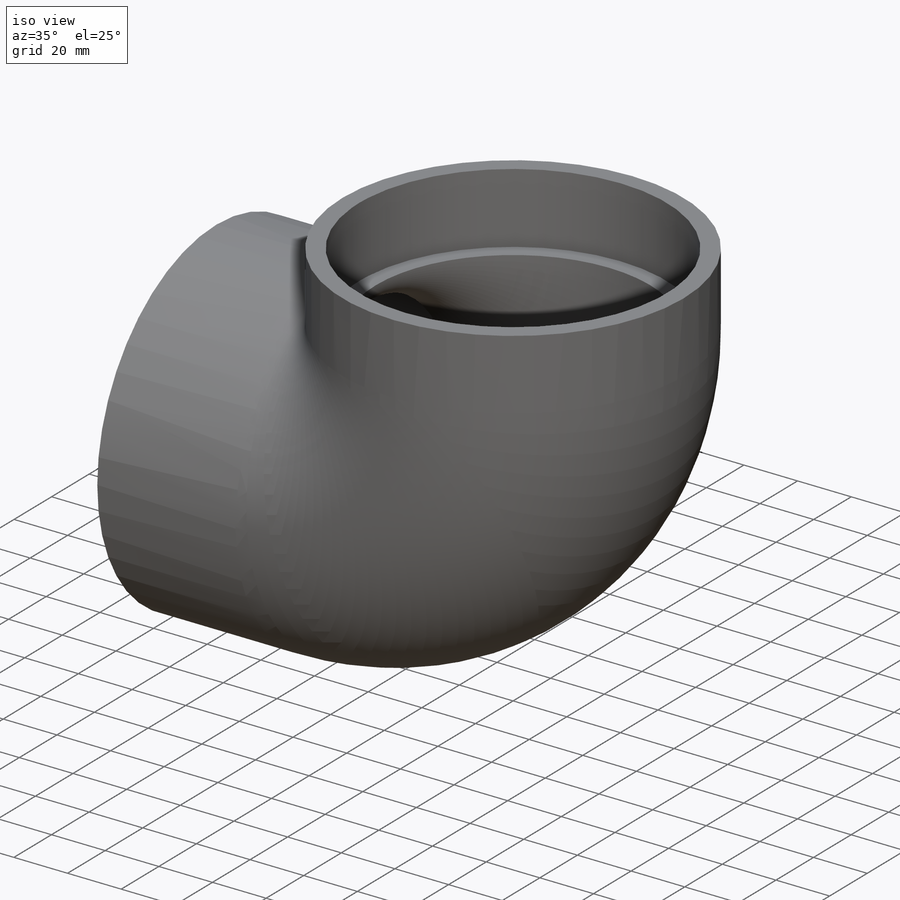
[diagram: iso view]
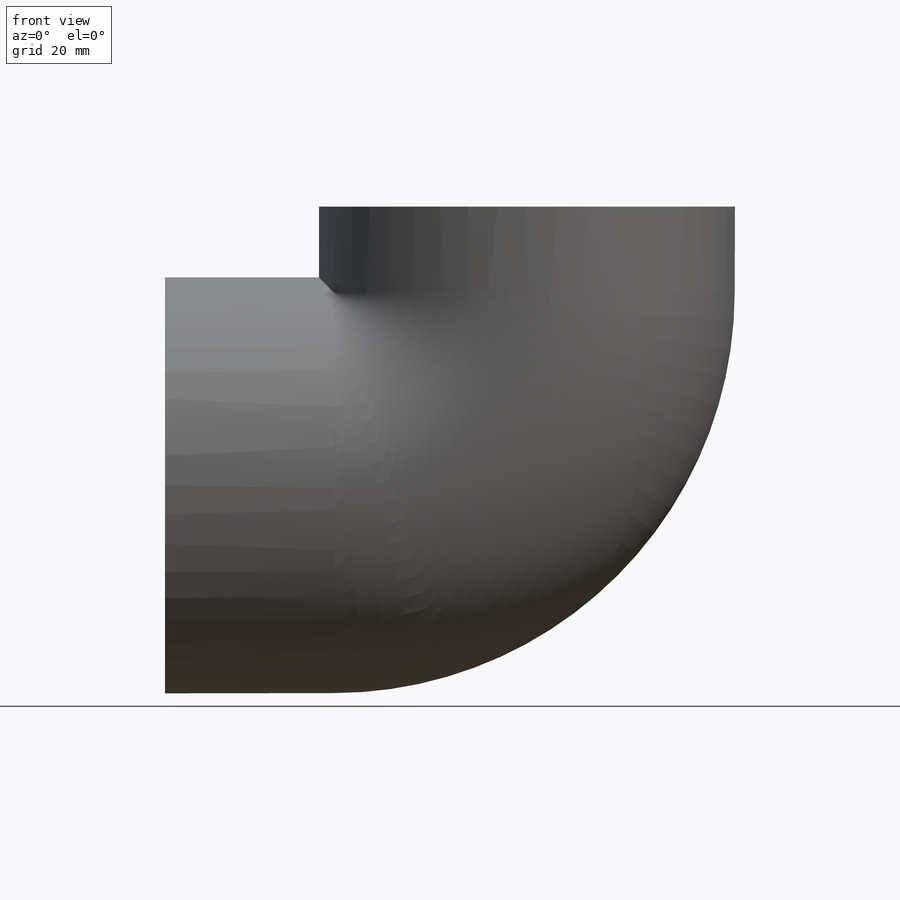
[diagram: front view]
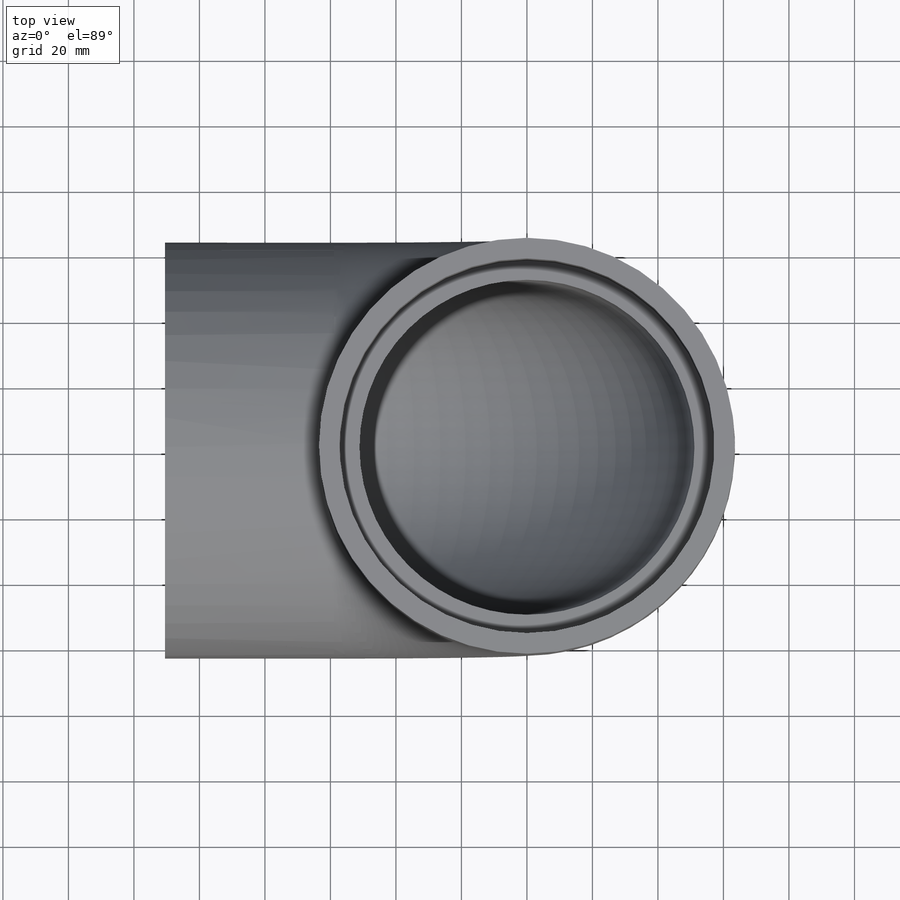
[diagram: top view]
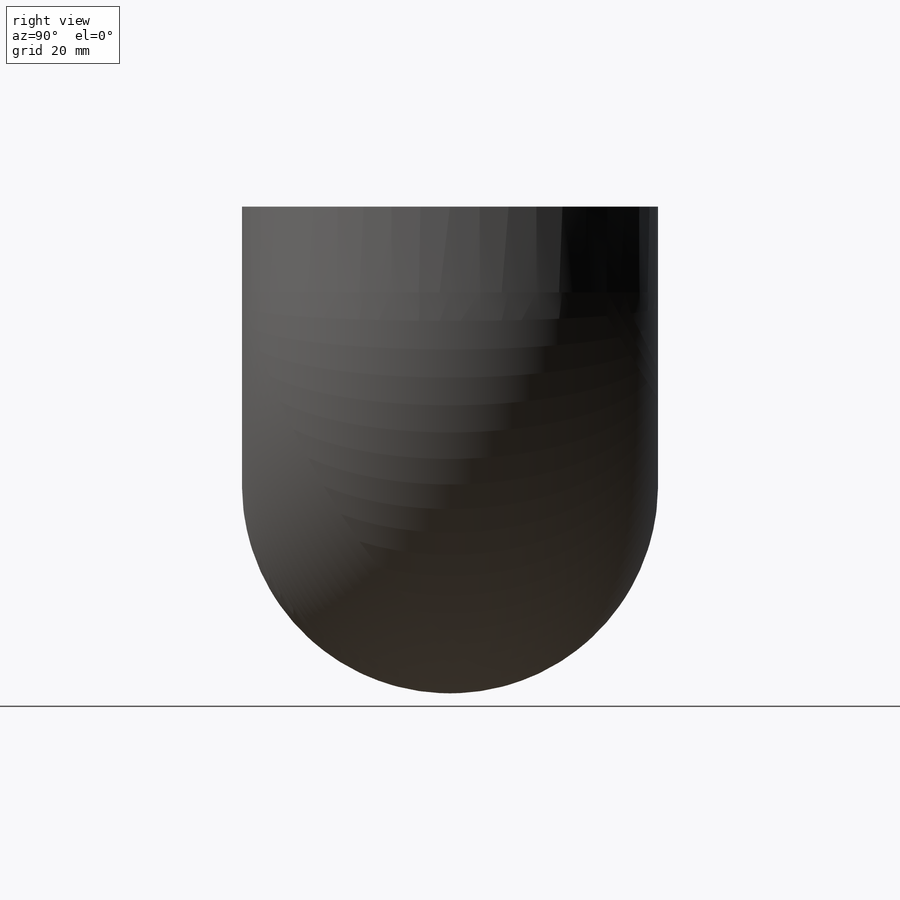
[diagram: right view]
SOLIDWORKS PART (.sldprt)
format: sldprt  version: not decoded by parser v0  size: 331,776 bytes
history: native  units: mm
features: sketch x6, revolve x2, material x1, sweep x1, cut_extrude x1 (+13 scaffold rows collapsed)
feature tree (24):
  scaffold x13  (default folders/planes/origin — collapsed)
  material  "PVC Rigid"
  sketch  "Sketch0"  dims[H=110.49mm G=58.928mm M=127.0mm OD A=114.7572mm OD B=114.0714mm ID=102.2604mm]
  sketch  "Sketch1"
  revolve  "Revolve1"  Angle=360deg
  sketch  "Sketch2"  dims[D1=~13.71728mm]
  revolve  "Revolve2"  Angle=360deg
  sketch  "Sketch3"
  sketch  "Sketch4"
  sweep  "Sweep1"
  sketch  "Sketch5"  dims[D1=~85.47476mm]
  cut_extrude  "Cut-Extrude1"  Depth=25.4mm
decode coverage: 6 of 10 modeling features carry decoded parameters
note: ~ marks probable driven/reference dimensions
note: suppression state not decoded; provenance and decode notes live in map.json
